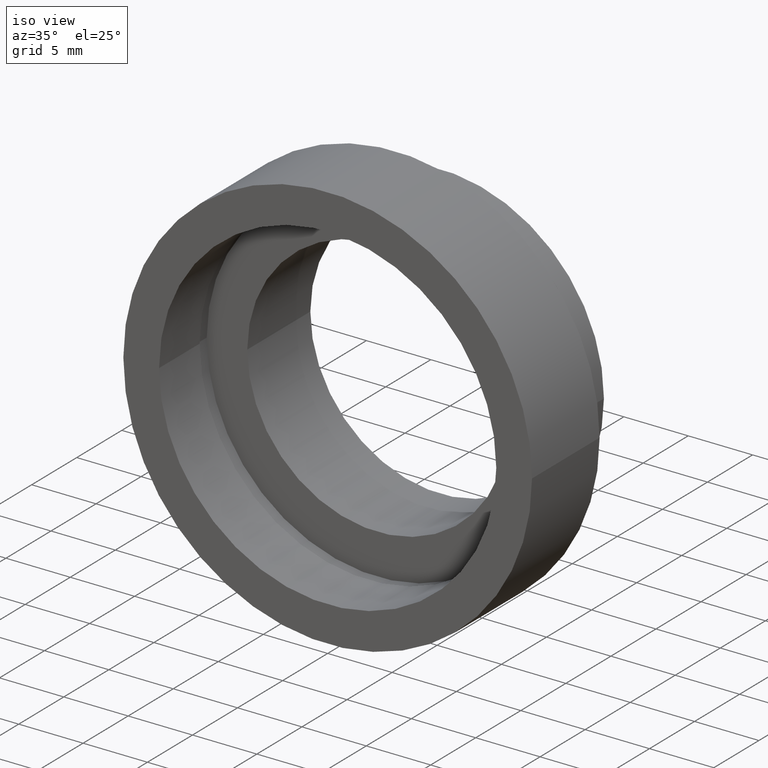
[diagram: clean part render]
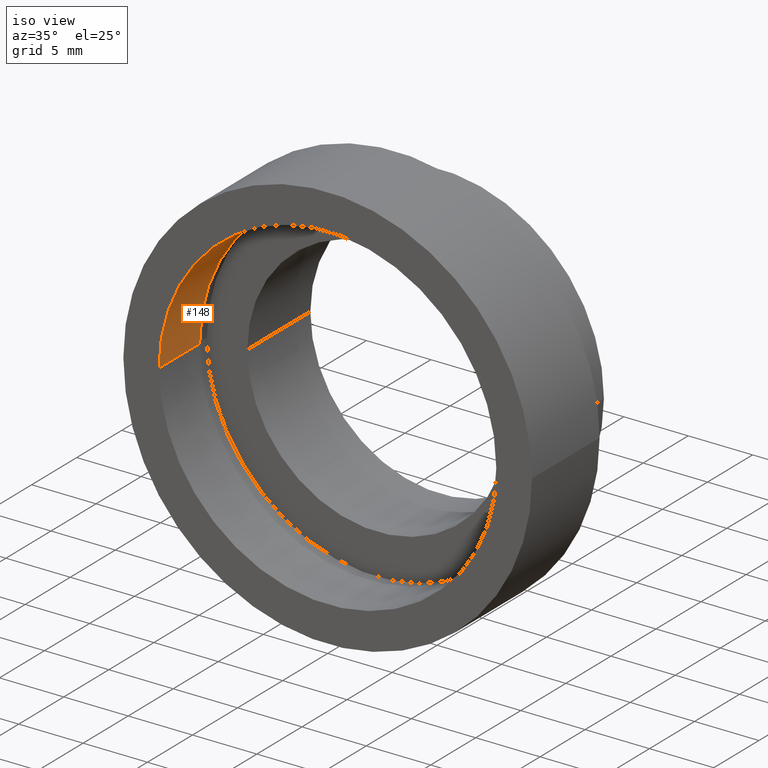
[diagram: same view with one face highlighted and labeled with its STEP entity id]
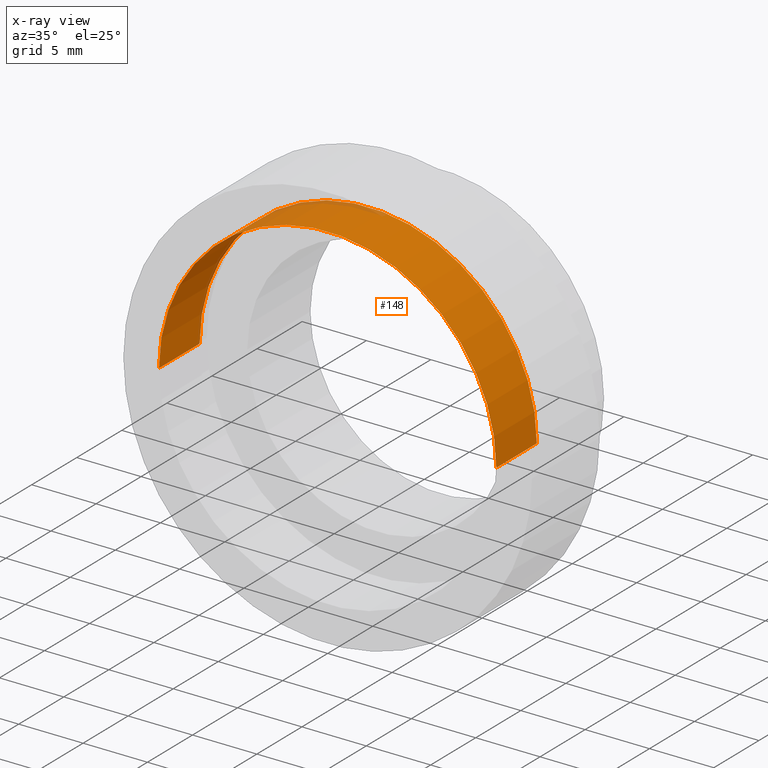
[diagram: x-ray of the same camera — body ghosted, the highlighted face saturated]
A machine part, iso view. The second image highlights one B-rep face of the part: STEP entity #148.
The next image is the same camera in x-ray: the body ghosted, the highlighted face saturated — about 2% of this face is hidden behind the body in this view.
In plain terms, the highlighted cylindrical surface (partial cylindrical patch) has radius 13.1 mm, axis along (-0, 1, -0).
Its self-contained STEP definition (entity closure, byte-faithful):
#10 = CARTESIAN_POINT ( 'NONE',  ( 0.0000000000000000000, 16.88601823708207700, 0.0000000000000000000 ) ) ;
#32 = DIRECTION ( 'NONE',  ( -1.224646799147351000E-016, 1.000000000000000000, -0.0000000000000000000 ) ) ;
#33 = ORIENTED_EDGE ( 'NONE', *, *, #399, .F. ) ;
#47 = EDGE_CURVE ( 'NONE', #155, #258, #526, .T. ) ;
#59 = DIRECTION ( 'NONE',  ( -1.000000000000000000, 0.0000000000000000000, 0.0000000000000000000 ) ) ;
#72 = LINE ( 'NONE', #290, #548 ) ;
#104 = CARTESIAN_POINT ( 'NONE',  ( 1.516849758822328500E-015, 4.499999999999995600, 0.0000000000000000000 ) ) ;
#111 = VERTEX_POINT ( 'NONE', #362 ) ;
#119 = CARTESIAN_POINT ( 'NONE',  ( 13.10000000000000100, 1.604287306883029700E-015, 1.604287306883032600E-015 ) ) ;
#142 = CARTESIAN_POINT ( 'NONE',  ( 13.10000000000000000, 16.88601823708207700, 1.604287306883032600E-015 ) ) ;
#145 = DIRECTION ( 'NONE',  ( -1.224646799147351000E-016, 1.000000000000000000, -0.0000000000000000000 ) ) ;
#148 = ADVANCED_FACE ( 'NONE', ( #460 ), #183, .F. ) ;
#151 = CARTESIAN_POINT ( 'NONE',  ( -13.09999999999999800, 4.499999999999993800, 0.0000000000000000000 ) ) ;
#155 = VERTEX_POINT ( 'NONE', #484 ) ;
#161 = AXIS2_PLACEMENT_3D ( 'NONE', #104, #477, #202 ) ;
#168 = AXIS2_PLACEMENT_3D ( 'NONE', #489, #535, #314 ) ;
#170 = LINE ( 'NONE', #142, #608 ) ;
#183 = CYLINDRICAL_SURFACE ( 'NONE', #598, 13.10000000000000000 ) ;
#202 = DIRECTION ( 'NONE',  ( -1.000000000000000000, -1.324216393875425300E-016, 0.0000000000000000000 ) ) ;
#205 = ORIENTED_EDGE ( 'NONE', *, *, #410, .T. ) ;
#258 = VERTEX_POINT ( 'NONE', #119 ) ;
#265 = DIRECTION ( 'NONE',  ( -1.224646799147351000E-016, 1.000000000000000000, -0.0000000000000000000 ) ) ;
#273 = CIRCLE ( 'NONE', #161, 13.10000000000000000 ) ;
#290 = CARTESIAN_POINT ( 'NONE',  ( -13.10000000000000000, 16.88601823708207700, 0.0000000000000000000 ) ) ;
#314 = DIRECTION ( 'NONE',  ( -1.000000000000000000, -1.224646799147351000E-016, 0.0000000000000000000 ) ) ;
#362 = CARTESIAN_POINT ( 'NONE',  ( 13.10000000000000100, 4.499999999999997300, 1.604287306883032600E-015 ) ) ;
#390 = ORIENTED_EDGE ( 'NONE', *, *, #47, .F. ) ;
#399 = EDGE_CURVE ( 'NONE', #258, #111, #170, .T. ) ;
#410 = EDGE_CURVE ( 'NONE', #155, #577, #72, .T. ) ;
#456 = ORIENTED_EDGE ( 'NONE', *, *, #593, .T. ) ;
#460 = FACE_OUTER_BOUND ( 'NONE', #601, .T. ) ;
#477 = DIRECTION ( 'NONE',  ( -1.224646799147351000E-016, 1.000000000000000000, -0.0000000000000000000 ) ) ;
#484 = CARTESIAN_POINT ( 'NONE',  ( -13.09999999999999800, -1.604287306883029700E-015, 0.0000000000000000000 ) ) ;
#489 = CARTESIAN_POINT ( 'NONE',  ( 2.067940818438636100E-015, 0.0000000000000000000, 0.0000000000000000000 ) ) ;
#526 = CIRCLE ( 'NONE', #168, 13.10000000000000000 ) ;
#535 = DIRECTION ( 'NONE',  ( -1.224646799147351000E-016, 1.000000000000000000, -0.0000000000000000000 ) ) ;
#548 = VECTOR ( 'NONE', #145, 1000.000000000000000 ) ;
#577 = VERTEX_POINT ( 'NONE', #151 ) ;
#593 = EDGE_CURVE ( 'NONE', #577, #111, #273, .T. ) ;
#598 = AXIS2_PLACEMENT_3D ( 'NONE', #10, #265, #59 ) ;
#601 = EDGE_LOOP ( 'NONE', ( #33, #390, #205, #456 ) ) ;
#608 = VECTOR ( 'NONE', #32, 1000.000000000000000 ) ;